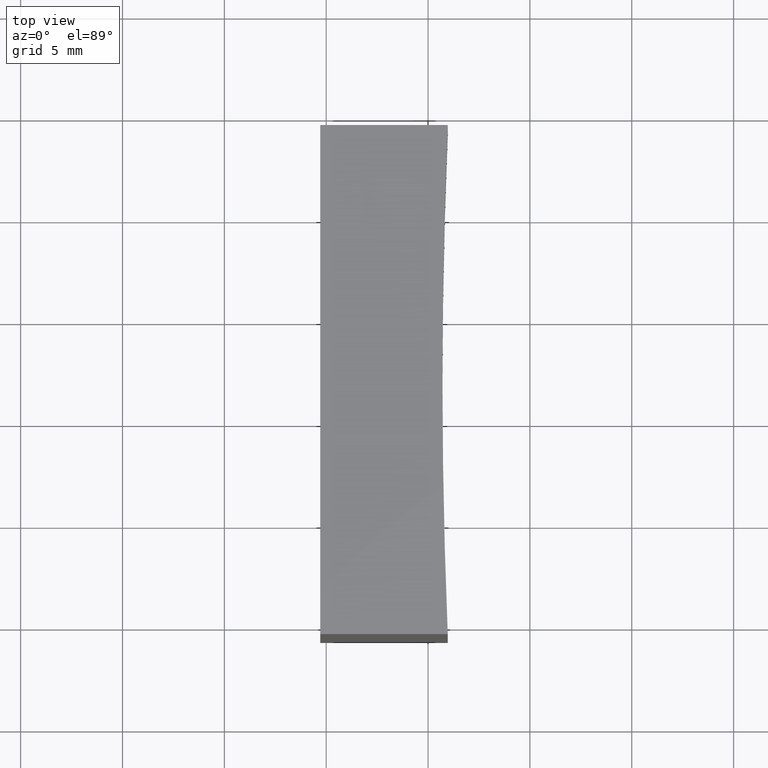
[diagram: clean part render]
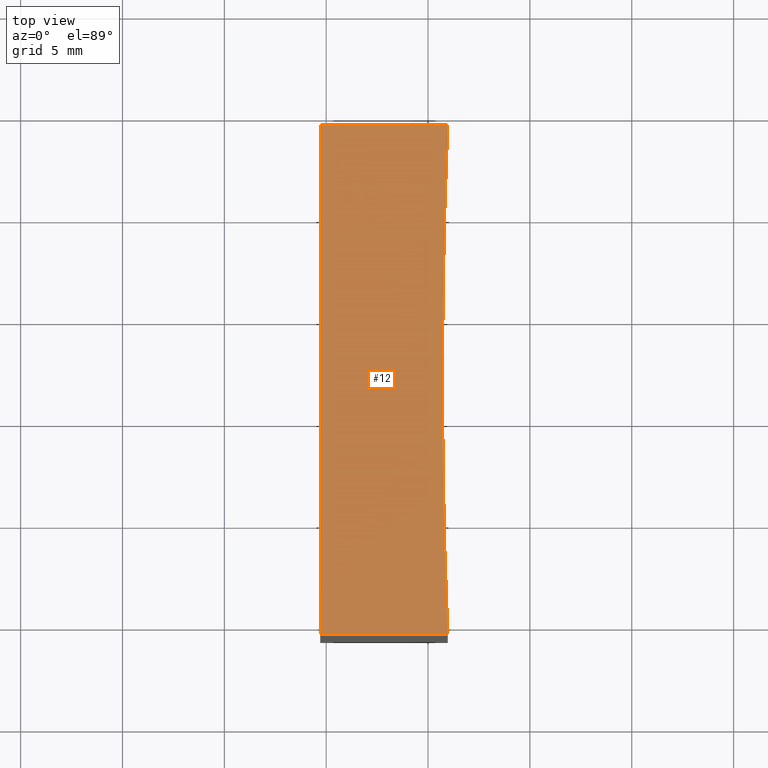
[diagram: same view with one face highlighted and labeled with its STEP entity id]
A machine part, top view. The second image highlights one B-rep face of the part: STEP entity #12.
In plain terms, the highlighted planar face has unit normal (0, 0, 1).
Its self-contained STEP definition (entity closure, byte-faithful):
#1 = ORIENTED_EDGE ( 'NONE', *, *, #8, .T. ) ;
#8 = EDGE_CURVE ( 'NONE', #127, #15, #87, .T. ) ;
#9 = CARTESIAN_POINT ( 'NONE',  ( 284.7071356312820900, 54.35792926776707600, 25.00000000000000000 ) ) ;
#12 = ADVANCED_FACE ( 'NONE', ( #190 ), #224, .T. ) ;
#15 = VERTEX_POINT ( 'NONE', #113 ) ;
#16 = DIRECTION ( 'NONE',  ( 1.000000000000000000, 3.325067110953557600E-015, -0.0000000000000000000 ) ) ;
#32 = EDGE_CURVE ( 'NONE', #62, #225, #143, .T. ) ;
#37 = AXIS2_PLACEMENT_3D ( 'NONE', #229, #177, #228 ) ;
#39 = VECTOR ( 'NONE', #157, 1000.000000000000000 ) ;
#44 = VECTOR ( 'NONE', #91, 1000.000000000000000 ) ;
#56 = CARTESIAN_POINT ( 'NONE',  ( 290.7071356312886800, 66.85792926776709100, 25.00000000000000000 ) ) ;
#62 = VERTEX_POINT ( 'NONE', #209 ) ;
#74 = CIRCLE ( 'NONE', #37, 300.0000000000000600 ) ;
#75 = CARTESIAN_POINT ( 'NONE',  ( 284.7071356312820900, 79.35792926776707600, 25.00000000000000000 ) ) ;
#76 = ORIENTED_EDGE ( 'NONE', *, *, #32, .T. ) ;
#80 = EDGE_CURVE ( 'NONE', #123, #62, #74, .T. ) ;
#87 = LINE ( 'NONE', #206, #148 ) ;
#88 = CARTESIAN_POINT ( 'NONE',  ( 590.7071356312887900, 66.85792926776709100, 25.00000000000000000 ) ) ;
#91 = DIRECTION ( 'NONE',  ( -1.000000000000000000, -0.0000000000000000000, -0.0000000000000000000 ) ) ;
#98 = CARTESIAN_POINT ( 'NONE',  ( 284.7071356312820900, 79.35792926776707600, 25.00000000000000000 ) ) ;
#106 = EDGE_LOOP ( 'NONE', ( #212, #1, #238, #111, #76 ) ) ;
#107 = AXIS2_PLACEMENT_3D ( 'NONE', #88, #220, #110 ) ;
#110 = DIRECTION ( 'NONE',  ( 1.000000000000000000, 0.0000000000000000000, -0.0000000000000000000 ) ) ;
#111 = ORIENTED_EDGE ( 'NONE', *, *, #80, .T. ) ;
#113 = CARTESIAN_POINT ( 'NONE',  ( 290.9676654242437100, 54.35792926776714800, 25.00000000000000000 ) ) ;
#123 = VERTEX_POINT ( 'NONE', #56 ) ;
#125 = EDGE_CURVE ( 'NONE', #225, #127, #158, .T. ) ;
#127 = VERTEX_POINT ( 'NONE', #194 ) ;
#143 = LINE ( 'NONE', #75, #44 ) ;
#148 = VECTOR ( 'NONE', #16, 1000.000000000000000 ) ;
#154 = CARTESIAN_POINT ( 'NONE',  ( 590.7071356312887900, 66.85792926776709100, 25.00000000000000000 ) ) ;
#155 = DIRECTION ( 'NONE',  ( -0.0000000000000000000, -0.0000000000000000000, -1.000000000000000000 ) ) ;
#157 = DIRECTION ( 'NONE',  ( -0.0000000000000000000, -1.000000000000000000, -0.0000000000000000000 ) ) ;
#158 = LINE ( 'NONE', #9, #39 ) ;
#166 = AXIS2_PLACEMENT_3D ( 'NONE', #154, #155, #191 ) ;
#175 = CIRCLE ( 'NONE', #166, 300.0000000000000600 ) ;
#177 = DIRECTION ( 'NONE',  ( -0.0000000000000000000, -0.0000000000000000000, -1.000000000000000000 ) ) ;
#190 = FACE_OUTER_BOUND ( 'NONE', #106, .T. ) ;
#191 = DIRECTION ( 'NONE',  ( 1.000000000000000000, 0.0000000000000000000, 0.0000000000000000000 ) ) ;
#194 = CARTESIAN_POINT ( 'NONE',  ( 284.7071356312820900, 54.35792926776707600, 25.00000000000000000 ) ) ;
#206 = CARTESIAN_POINT ( 'NONE',  ( 290.9676654242437600, 54.35792926776709800, 25.00000000000000000 ) ) ;
#209 = CARTESIAN_POINT ( 'NONE',  ( 290.9676654242437600, 79.35792926776707600, 25.00000000000000000 ) ) ;
#212 = ORIENTED_EDGE ( 'NONE', *, *, #125, .T. ) ;
#215 = EDGE_CURVE ( 'NONE', #15, #123, #175, .T. ) ;
#220 = DIRECTION ( 'NONE',  ( 0.0000000000000000000, 0.0000000000000000000, 1.000000000000000000 ) ) ;
#224 = PLANE ( 'NONE',  #107 ) ;
#225 = VERTEX_POINT ( 'NONE', #98 ) ;
#228 = DIRECTION ( 'NONE',  ( 1.000000000000000000, 0.0000000000000000000, 0.0000000000000000000 ) ) ;
#229 = CARTESIAN_POINT ( 'NONE',  ( 590.7071356312887900, 66.85792926776709100, 25.00000000000000000 ) ) ;
#238 = ORIENTED_EDGE ( 'NONE', *, *, #215, .T. ) ;